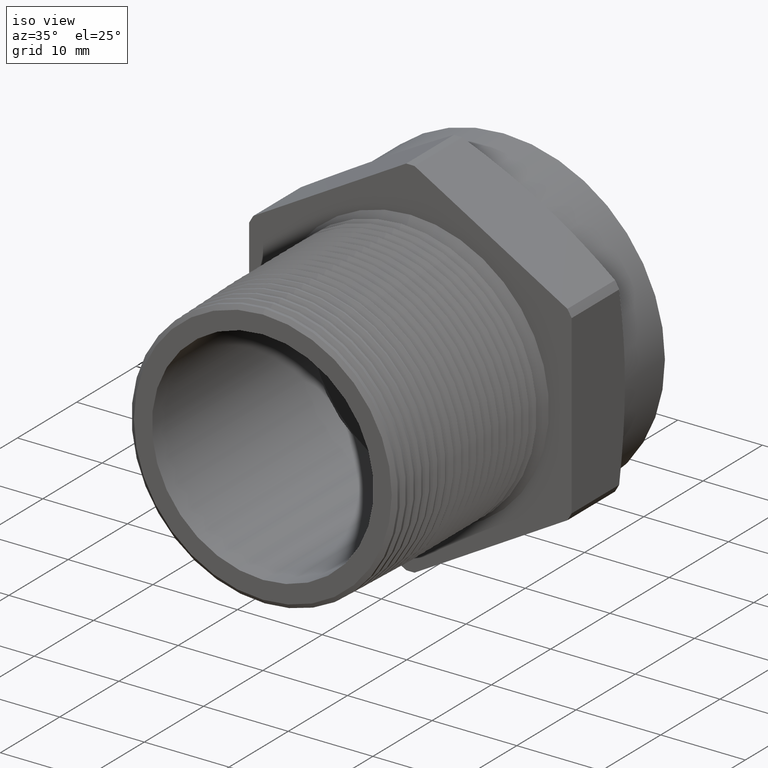
[diagram: clean part render]
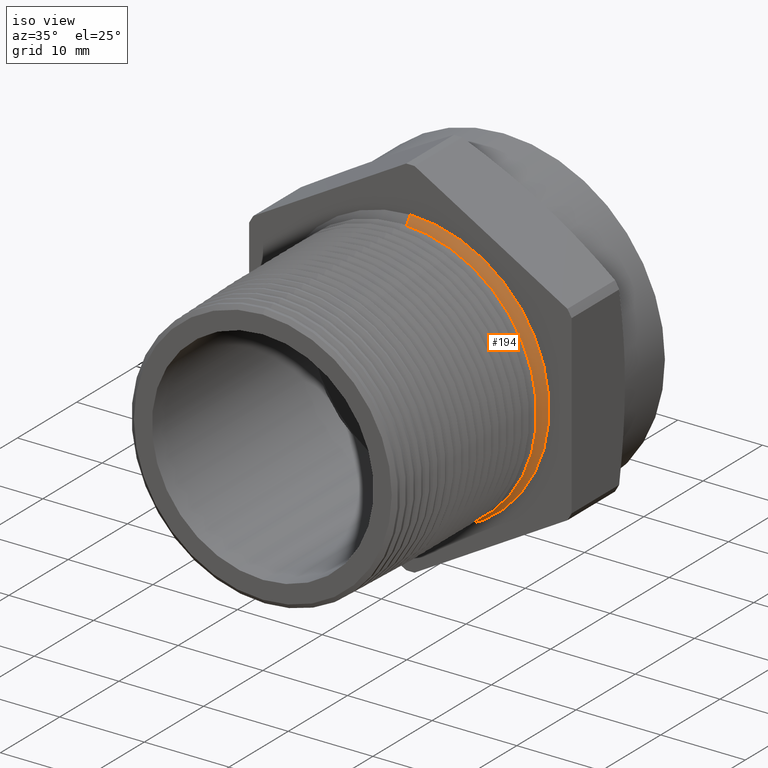
[diagram: same view with one face highlighted and labeled with its STEP entity id]
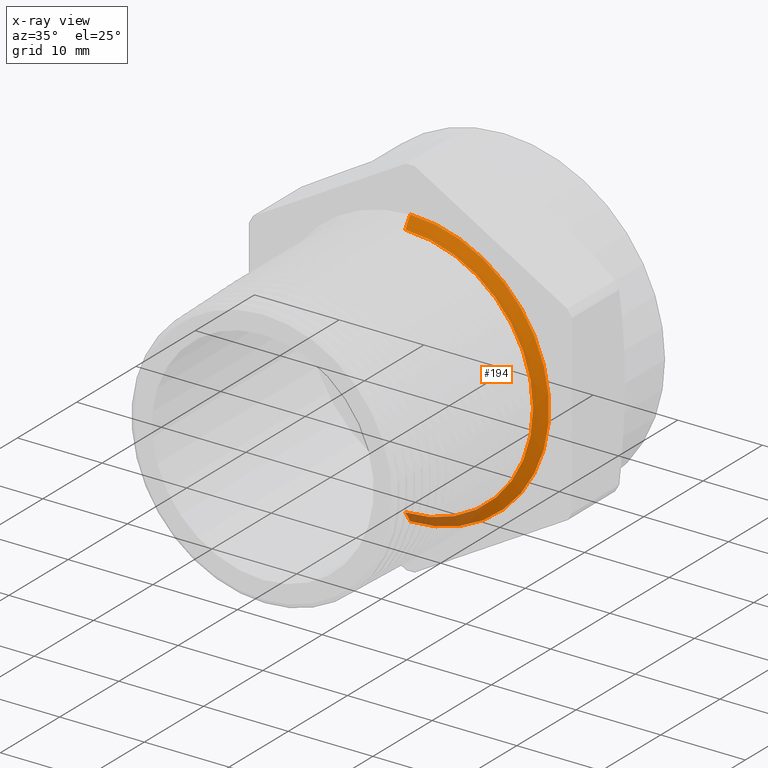
[diagram: x-ray of the same camera — body ghosted, the highlighted face saturated]
A machine part, iso view. The second image highlights one B-rep face of the part: STEP entity #194.
The next image is the same camera in x-ray: the body ghosted, the highlighted face saturated — about 10% of this face is hidden behind the body in this view.
In plain terms, the highlighted conical surface has half-angle 56.5 deg.
Its self-contained STEP definition (entity closure, byte-faithful):
#169 = VERTEX_POINT ( 'NONE', #1740 ) ;
#170 = ORIENTED_EDGE ( 'NONE', *, *, #184, .T. ) ;
#171 = VERTEX_POINT ( 'NONE', #1739 ) ;
#177 = VERTEX_POINT ( 'NONE', #1794 ) ;
#179 = ORIENTED_EDGE ( 'NONE', *, *, #185, .F. ) ;
#180 = EDGE_CURVE ( 'NONE', #187, #169, #1793, .T. ) ;
#181 = ORIENTED_EDGE ( 'NONE', *, *, #725, .T. ) ;
#184 = EDGE_CURVE ( 'NONE', #177, #171, #1782, .T. ) ;
#185 = EDGE_CURVE ( 'NONE', #169, #171, #1777, .T. ) ;
#187 = VERTEX_POINT ( 'NONE', #1771 ) ;
#194 = ADVANCED_FACE ( 'NONE', ( #1813 ), #1811, .T. ) ;
#195 = EDGE_LOOP ( 'NONE', ( #196, #181, #170, #179 ) ) ;
#196 = ORIENTED_EDGE ( 'NONE', *, *, #180, .F. ) ;
#725 = EDGE_CURVE ( 'NONE', #187, #177, #2867, .T. ) ;
#1739 = CARTESIAN_POINT ( 'NONE',  ( 0.0000000000000000000, 0.9799999999999999800, 0.6449999999999999100 ) ) ;
#1740 = CARTESIAN_POINT ( 'NONE',  ( 7.494033680376999400E-017, 0.9463104676866714900, 0.5941006689245972300 ) ) ;
#1771 = CARTESIAN_POINT ( 'NONE',  ( 0.0000000000000000000, 0.9463104676866714900, -0.5941006689245972300 ) ) ;
#1774 = DIRECTION ( 'NONE',  ( 0.0000000000000000000, 0.5519369853120605900, 0.8338858220671665500 ) ) ;
#1775 = VECTOR ( 'NONE', #1774, 39.37007874015748100 ) ;
#1776 = CARTESIAN_POINT ( 'NONE',  ( 0.0000000000000000000, 0.9463104676866714900, 0.5941006689245972300 ) ) ;
#1777 = LINE ( 'NONE', #1776, #1775 ) ;
#1778 = DIRECTION ( 'NONE',  ( 0.0000000000000000000, 0.0000000000000000000, -1.000000000000000000 ) ) ;
#1779 = DIRECTION ( 'NONE',  ( -0.0000000000000000000, -1.000000000000000000, -0.0000000000000000000 ) ) ;
#1780 = CARTESIAN_POINT ( 'NONE',  ( 0.0000000000000000000, 0.9799999999999999800, 0.0000000000000000000 ) ) ;
#1781 = AXIS2_PLACEMENT_3D ( 'NONE', #1780, #1779, #1778 ) ;
#1782 = CIRCLE ( 'NONE', #1781, 0.6449999999999999100 ) ;
#1789 = DIRECTION ( 'NONE',  ( 0.0000000000000000000, 0.0000000000000000000, -1.000000000000000000 ) ) ;
#1790 = DIRECTION ( 'NONE',  ( -0.0000000000000000000, -1.000000000000000000, -0.0000000000000000000 ) ) ;
#1791 = CARTESIAN_POINT ( 'NONE',  ( 0.0000000000000000000, 0.9463104676866714900, 0.0000000000000000000 ) ) ;
#1792 = AXIS2_PLACEMENT_3D ( 'NONE', #1791, #1790, #1789 ) ;
#1793 = CIRCLE ( 'NONE', #1792, 0.5941006689245972300 ) ;
#1794 = CARTESIAN_POINT ( 'NONE',  ( 7.898971854500428000E-017, 0.9799999999999999800, -0.6449999999999999100 ) ) ;
#1807 = DIRECTION ( 'NONE',  ( 0.0000000000000000000, 0.0000000000000000000, 1.000000000000000000 ) ) ;
#1808 = DIRECTION ( 'NONE',  ( 0.0000000000000000000, 1.000000000000000000, 0.0000000000000000000 ) ) ;
#1809 = CARTESIAN_POINT ( 'NONE',  ( 0.0000000000000000000, 0.9463104676866714900, 0.0000000000000000000 ) ) ;
#1810 = AXIS2_PLACEMENT_3D ( 'NONE', #1809, #1808, #1807 ) ;
#1811 = CONICAL_SURFACE ( 'NONE', #1810, 0.5941006689245972300, 0.9861110273767933500 ) ;
#1813 = FACE_OUTER_BOUND ( 'NONE', #195, .T. ) ;
#2863 = DIRECTION ( 'NONE',  ( 1.021215602848914800E-016, 0.5519369853120605900, -0.8338858220671665500 ) ) ;
#2864 = VECTOR ( 'NONE', #2863, 39.37007874015748100 ) ;
#2865 = CARTESIAN_POINT ( 'NONE',  ( 7.275634825698094300E-017, 0.9463104676866714900, -0.5941006689245972300 ) ) ;
#2867 = LINE ( 'NONE', #2865, #2864 ) ;